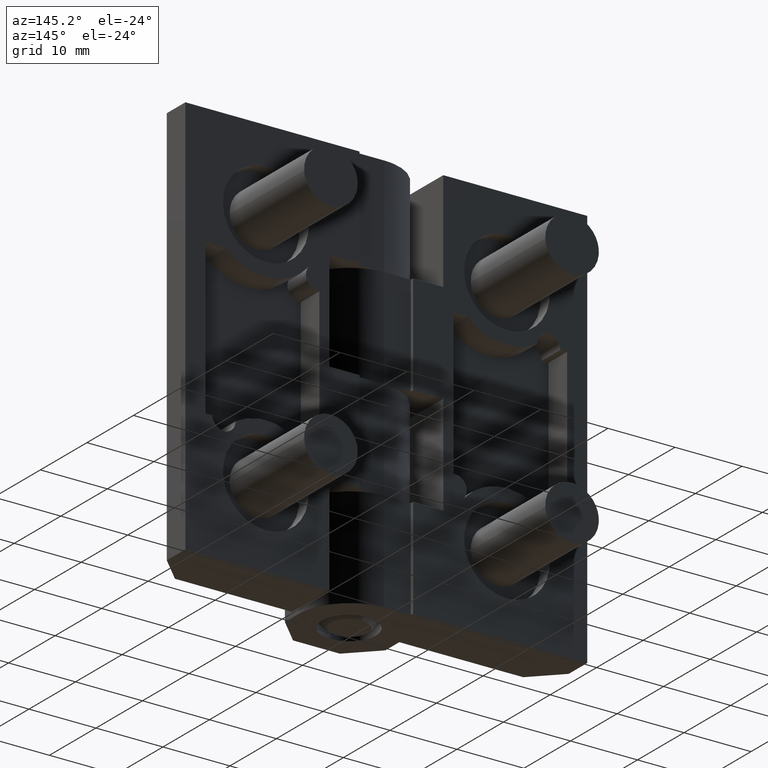
[diagram: clean part render]
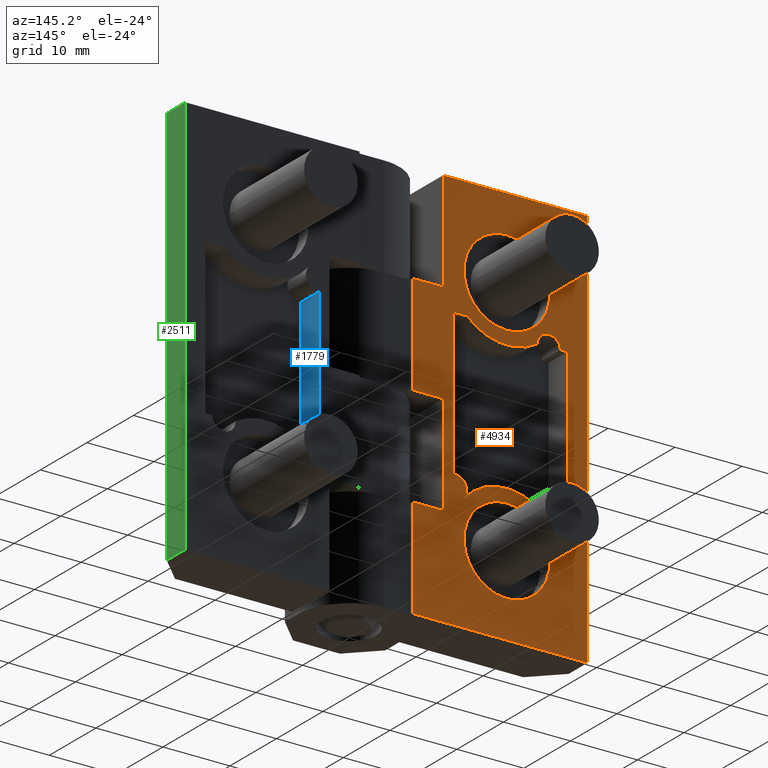
[diagram: same view with three faces highlighted in distinct colors, each labeled with its STEP entity id]
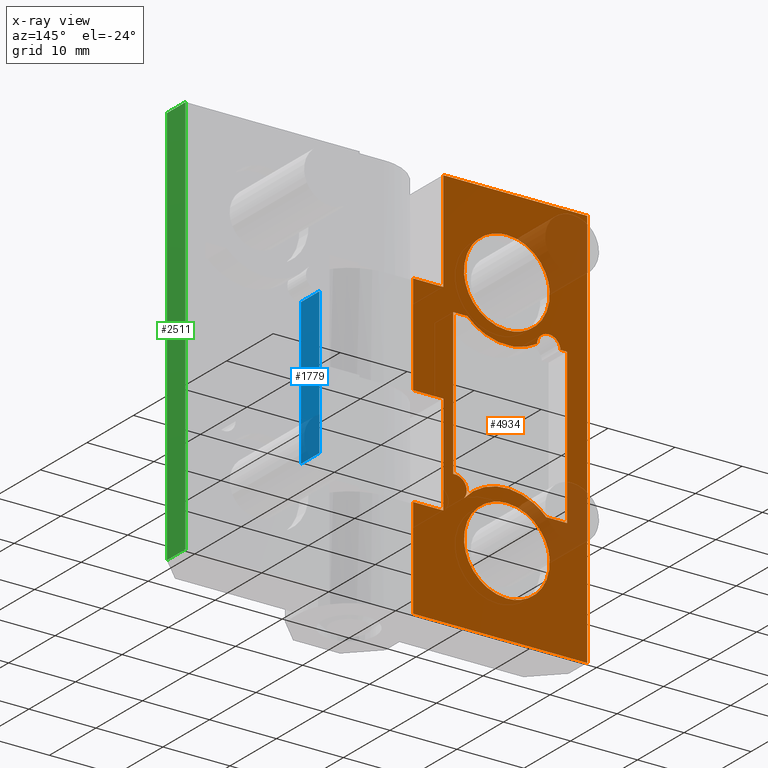
[diagram: x-ray of the same camera — body ghosted, the three highlighted faces saturated]
A machine part, auxiliary view with three faces highlighted in distinct colors.
The next image is the same camera in x-ray (body ghosted, the three faces saturated) — at least one of them is partly hidden behind the body in this view.
Their STEP definitions:

[orange] entity #4934 — the highlighted face is a freeform B-spline surface patch.
#2950=CARTESIAN_POINT('',(-24.380270935887019,8.0,48.502138212674900));
#2951=VERTEX_POINT('',#2950);
#2957=CARTESIAN_POINT('',(-18.0,8.0,54.399999999953202));
#2958=VERTEX_POINT('',#2957);
#2959=CARTESIAN_POINT('',(-18.0,8.0,54.399999999953202));
#2960=CARTESIAN_POINT('',(-23.916099146494403,8.0,54.399999999953202));
#2961=CARTESIAN_POINT('',(-24.380270935887019,8.0,48.502138212674900));
#2969=(BOUNDED_CURVE()B_SPLINE_CURVE(2,(#2959,#2960,#2961),.UNSPECIFIED.,.F.,.U.)B_SPLINE_CURVE_WITH_KNOTS((3,3),(0.0,0.236331300629355),.UNSPECIFIED.)CURVE()GEOMETRIC_REPRESENTATION_ITEM()RATIONAL_B_SPLINE_CURVE((1.0,0.723120658609194,0.969723356164695))REPRESENTATION_ITEM(''));
#2970=EDGE_CURVE('',#2958,#2951,#2969,.T.);
#2972=CARTESIAN_POINT('',(-11.619729064112979,8.0,47.497861787231493));
#2973=VERTEX_POINT('',#2972);
#2974=CARTESIAN_POINT('',(-11.619729064112981,8.0,47.497861787231493));
#2975=CARTESIAN_POINT('',(-11.600000000000001,8.0,47.748543315040330));
#2976=CARTESIAN_POINT('',(-11.600000000000000,8.0,47.999999999953197));
#2977=CARTESIAN_POINT('',(-11.600000000000001,8.0,54.399999999953195));
#2978=CARTESIAN_POINT('',(-18.0,8.0,54.399999999953202));
#2986=(BOUNDED_CURVE()B_SPLINE_CURVE(2,(#2974,#2975,#2976,#2977,#2978),.UNSPECIFIED.,.F.,.U.)B_SPLINE_CURVE_WITH_KNOTS((3,2,3),(0.736331300629355,0.750000000000000,1.0),.UNSPECIFIED.)CURVE()GEOMETRIC_REPRESENTATION_ITEM()RATIONAL_B_SPLINE_CURVE((0.969723356164695,0.983986122577353,1.0,0.707106781186548,1.0))REPRESENTATION_ITEM(''));
#2987=EDGE_CURVE('',#2973,#2958,#2986,.T.);
#3063=CARTESIAN_POINT('',(-18.0,8.0,41.599999999953198));
#3064=VERTEX_POINT('',#3063);
#3065=CARTESIAN_POINT('',(-18.0,8.0,41.599999999953198));
#3066=CARTESIAN_POINT('',(-12.083900853505574,8.0,41.599999999953205));
#3067=CARTESIAN_POINT('',(-11.619729064112978,8.0,47.497861787231493));
#3075=(BOUNDED_CURVE()B_SPLINE_CURVE(2,(#3065,#3066,#3067),.UNSPECIFIED.,.F.,.U.)B_SPLINE_CURVE_WITH_KNOTS((3,3),(0.500000000000000,0.736331300629355),.UNSPECIFIED.)CURVE()GEOMETRIC_REPRESENTATION_ITEM()RATIONAL_B_SPLINE_CURVE((1.0,0.723120658609194,0.969723356164696))REPRESENTATION_ITEM(''));
#3076=EDGE_CURVE('',#3064,#2973,#3075,.T.);
#3078=CARTESIAN_POINT('',(-24.380270935887019,8.0,48.502138212674893));
#3079=CARTESIAN_POINT('',(-24.399999999999999,8.0,48.251456684866085));
#3080=CARTESIAN_POINT('',(-24.399999999999999,8.0,47.999999999953197));
#3081=CARTESIAN_POINT('',(-24.400000000000002,8.0,41.599999999953205));
#3082=CARTESIAN_POINT('',(-18.0,8.0,41.599999999953198));
#3090=(BOUNDED_CURVE()B_SPLINE_CURVE(2,(#3078,#3079,#3080,#3081,#3082),.UNSPECIFIED.,.F.,.U.)B_SPLINE_CURVE_WITH_KNOTS((3,2,3),(0.236331300629355,0.250000000000000,0.500000000000000),.UNSPECIFIED.)CURVE()GEOMETRIC_REPRESENTATION_ITEM()RATIONAL_B_SPLINE_CURVE((0.969723356164695,0.983986122577353,1.0,0.707106781186548,1.0))REPRESENTATION_ITEM(''));
#3091=EDGE_CURVE('',#2951,#3064,#3090,.T.);
#3132=CARTESIAN_POINT('',(-24.380270935887019,8.0,12.502138212674900));
#3133=VERTEX_POINT('',#3132);
#3139=CARTESIAN_POINT('',(-18.0,8.0,18.399999999953199));
#3140=VERTEX_POINT('',#3139);
#3141=CARTESIAN_POINT('',(-18.0,8.0,18.399999999953199));
#3142=CARTESIAN_POINT('',(-23.916099146494403,8.0,18.399999999953199));
#3143=CARTESIAN_POINT('',(-24.380270935887019,8.0,12.502138212674904));
#3151=(BOUNDED_CURVE()B_SPLINE_CURVE(2,(#3141,#3142,#3143),.UNSPECIFIED.,.F.,.U.)B_SPLINE_CURVE_WITH_KNOTS((3,3),(0.0,0.236331300629355),.UNSPECIFIED.)CURVE()GEOMETRIC_REPRESENTATION_ITEM()RATIONAL_B_SPLINE_CURVE((1.0,0.723120658609194,0.969723356164695))REPRESENTATION_ITEM(''));
#3152=EDGE_CURVE('',#3140,#3133,#3151,.T.);
#3154=CARTESIAN_POINT('',(-11.619729064112979,8.0,11.497861787231489));
#3155=VERTEX_POINT('',#3154);
#3156=CARTESIAN_POINT('',(-11.619729064112981,8.0,11.497861787231491));
#3157=CARTESIAN_POINT('',(-11.600000000000001,8.0,11.748543315040321));
#3158=CARTESIAN_POINT('',(-11.600000000000000,8.0,11.999999999953200));
#3159=CARTESIAN_POINT('',(-11.600000000000001,8.0,18.399999999953195));
#3160=CARTESIAN_POINT('',(-18.0,8.0,18.399999999953199));
#3168=(BOUNDED_CURVE()B_SPLINE_CURVE(2,(#3156,#3157,#3158,#3159,#3160),.UNSPECIFIED.,.F.,.U.)B_SPLINE_CURVE_WITH_KNOTS((3,2,3),(0.736331300629355,0.750000000000000,1.0),.UNSPECIFIED.)CURVE()GEOMETRIC_REPRESENTATION_ITEM()RATIONAL_B_SPLINE_CURVE((0.969723356164695,0.983986122577353,1.0,0.707106781186548,1.0))REPRESENTATION_ITEM(''));
#3169=EDGE_CURVE('',#3155,#3140,#3168,.T.);
#3245=CARTESIAN_POINT('',(-18.0,8.0,5.599999999953199));
#3246=VERTEX_POINT('',#3245);
#3247=CARTESIAN_POINT('',(-18.0,8.0,5.599999999953199));
#3248=CARTESIAN_POINT('',(-12.083900853505574,8.0,5.599999999953200));
#3249=CARTESIAN_POINT('',(-11.619729064112978,8.0,11.497861787231489));
#3257=(BOUNDED_CURVE()B_SPLINE_CURVE(2,(#3247,#3248,#3249),.UNSPECIFIED.,.F.,.U.)B_SPLINE_CURVE_WITH_KNOTS((3,3),(0.500000000000000,0.736331300629355),.UNSPECIFIED.)CURVE()GEOMETRIC_REPRESENTATION_ITEM()RATIONAL_B_SPLINE_CURVE((1.0,0.723120658609194,0.969723356164696))REPRESENTATION_ITEM(''));
#3258=EDGE_CURVE('',#3246,#3155,#3257,.T.);
#3260=CARTESIAN_POINT('',(-24.380270935887019,8.0,12.502138212674904));
#3261=CARTESIAN_POINT('',(-24.399999999999999,8.0,12.251456684866080));
#3262=CARTESIAN_POINT('',(-24.399999999999999,8.0,11.999999999953200));
#3263=CARTESIAN_POINT('',(-24.400000000000002,8.0,5.599999999953201));
#3264=CARTESIAN_POINT('',(-18.0,8.0,5.599999999953199));
#3272=(BOUNDED_CURVE()B_SPLINE_CURVE(2,(#3260,#3261,#3262,#3263,#3264),.UNSPECIFIED.,.F.,.U.)B_SPLINE_CURVE_WITH_KNOTS((3,2,3),(0.236331300629355,0.250000000000000,0.500000000000000),.UNSPECIFIED.)CURVE()GEOMETRIC_REPRESENTATION_ITEM()RATIONAL_B_SPLINE_CURVE((0.969723356164695,0.983986122577353,1.0,0.707106781186548,1.0))REPRESENTATION_ITEM(''));
#3273=EDGE_CURVE('',#3133,#3246,#3272,.T.);
#3797=CARTESIAN_POINT('',(-9.999999999999890,8.0,20.286438650791698));
#3798=VERTEX_POINT('',#3797);
#3799=CARTESIAN_POINT('',(-10.0,8.0,42.0));
#3800=VERTEX_POINT('',#3799);
#3801=CARTESIAN_POINT('',(-9.999999999999890,8.0,20.286438650791698));
#3802=CARTESIAN_POINT('',(-10.0,8.0,42.0));
#3803=QUASI_UNIFORM_CURVE('',1,(#3801,#3802),.UNSPECIFIED.,.F.,.U.);
#3804=EDGE_CURVE('',#3798,#3800,#3803,.T.);
#3825=CARTESIAN_POINT('',(-12.121224617272800,8.0,42.0));
#3826=VERTEX_POINT('',#3825);
#3827=CARTESIAN_POINT('',(-10.0,8.0,42.0));
#3828=CARTESIAN_POINT('',(-12.121224617272800,8.0,42.0));
#3829=QUASI_UNIFORM_CURVE('',1,(#3827,#3828),.UNSPECIFIED.,.F.,.U.);
#3830=EDGE_CURVE('',#3800,#3826,#3829,.T.);
#3856=CARTESIAN_POINT('',(-22.500032020331499,8.0,40.907066064268200));
#3857=VERTEX_POINT('',#3856);
#3858=CARTESIAN_POINT('',(-22.500032020331481,8.0,40.907066064268243));
#3859=CARTESIAN_POINT('',(-16.877442339288741,8.000000000000002,37.339877390117103));
#3860=CARTESIAN_POINT('',(-12.121224617272800,8.0,42.0));
#3868=(BOUNDED_CURVE()B_SPLINE_CURVE(2,(#3858,#3859,#3860),.UNSPECIFIED.,.F.,.U.)CURVE()GEOMETRIC_REPRESENTATION_ITEM()QUASI_UNIFORM_CURVE()RATIONAL_B_SPLINE_CURVE((1.0,0.783650455742543,1.0))REPRESENTATION_ITEM(''));
#3869=EDGE_CURVE('',#3857,#3826,#3868,.T.);
#3899=CARTESIAN_POINT('',(-25.996935475914000,8.0,41.0));
#3900=VERTEX_POINT('',#3899);
#3901=CARTESIAN_POINT('',(-22.500032020331510,8.0,40.907066064268200));
#3902=CARTESIAN_POINT('',(-22.510278533623929,8.000000000000002,42.600862686382975));
#3903=CARTESIAN_POINT('',(-24.203508300499919,8.0,42.645862071791463));
#3904=CARTESIAN_POINT('',(-25.896738067375903,8.000000000000002,42.690861457199951));
#3905=CARTESIAN_POINT('',(-25.996935475913951,8.0,41.0));
#3913=(BOUNDED_CURVE()B_SPLINE_CURVE(2,(#3901,#3902,#3903,#3904,#3905),.UNSPECIFIED.,.F.,.U.)B_SPLINE_CURVE_WITH_KNOTS((3,2,3),(0.0,0.500000000000000,1.0),.UNSPECIFIED.)CURVE()GEOMETRIC_REPRESENTATION_ITEM()RATIONAL_B_SPLINE_CURVE((1.0,0.718544845127406,1.0,0.718544845127406,1.0))REPRESENTATION_ITEM(''));
#3914=EDGE_CURVE('',#3857,#3900,#3913,.T.);
#3931=CARTESIAN_POINT('',(-27.0,8.0,41.0));
#3932=VERTEX_POINT('',#3931);
#3933=CARTESIAN_POINT('',(-25.996935475914000,8.0,41.0));
#3934=CARTESIAN_POINT('',(-27.0,8.0,41.0));
#3935=QUASI_UNIFORM_CURVE('',1,(#3933,#3934),.UNSPECIFIED.,.F.,.U.);
#3936=EDGE_CURVE('',#3900,#3932,#3935,.T.);
#3953=CARTESIAN_POINT('',(-27.0,8.0,18.0));
#3954=VERTEX_POINT('',#3953);
#3955=CARTESIAN_POINT('',(-27.0,8.0,41.0));
#3956=CARTESIAN_POINT('',(-27.0,8.0,18.0));
#3957=QUASI_UNIFORM_CURVE('',1,(#3955,#3956),.UNSPECIFIED.,.F.,.U.);
#3958=EDGE_CURVE('',#3932,#3954,#3957,.T.);
#3975=CARTESIAN_POINT('',(-23.878775382631950,8.0,18.0));
#3976=VERTEX_POINT('',#3975);
#3977=CARTESIAN_POINT('',(-27.0,8.0,18.0));
#3978=CARTESIAN_POINT('',(-23.878775382631950,8.0,18.0));
#3979=QUASI_UNIFORM_CURVE('',1,(#3977,#3978),.UNSPECIFIED.,.F.,.U.);
#3980=EDGE_CURVE('',#3954,#3976,#3979,.T.);
#4006=CARTESIAN_POINT('',(-11.586206896551660,8.0,17.424320973693550));
#4007=VERTEX_POINT('',#4006);
#4008=CARTESIAN_POINT('',(-11.586206896551660,8.0,17.424320973693550));
#4009=CARTESIAN_POINT('',(-13.950207683247823,8.0,20.219548618897342));
#4010=CARTESIAN_POINT('',(-17.607046344044011,8.0,20.390803741208909));
#4011=CARTESIAN_POINT('',(-21.263885004840201,8.0,20.562058863520473));
#4012=CARTESIAN_POINT('',(-23.878775382631900,8.0,17.999999999999961));
#4020=(BOUNDED_CURVE()B_SPLINE_CURVE(2,(#4008,#4009,#4010,#4011,#4012),.UNSPECIFIED.,.F.,.U.)B_SPLINE_CURVE_WITH_KNOTS((3,2,3),(0.0,0.500000000000000,1.0),.UNSPECIFIED.)CURVE()GEOMETRIC_REPRESENTATION_ITEM()RATIONAL_B_SPLINE_CURVE((1.0,0.916723622877948,1.0,0.916723622877948,1.0))REPRESENTATION_ITEM(''));
#4021=EDGE_CURVE('',#4007,#3976,#4020,.T.);
#4051=CARTESIAN_POINT('',(-9.999999999999895,8.0,20.286438650791659));
#4052=CARTESIAN_POINT('',(-11.195255925345359,8.0,20.458958983353913));
#4053=CARTESIAN_POINT('',(-11.780650435245899,8.0,19.402685694853659));
#4054=CARTESIAN_POINT('',(-12.366044945146447,8.0,18.346412406353405));
#4055=CARTESIAN_POINT('',(-11.586206896551690,8.0,17.424320973693529));
#4063=(BOUNDED_CURVE()B_SPLINE_CURVE(2,(#4051,#4052,#4053,#4054,#4055),.UNSPECIFIED.,.F.,.U.)B_SPLINE_CURVE_WITH_KNOTS((3,2,3),(0.0,0.500000000000000,1.0),.UNSPECIFIED.)CURVE()GEOMETRIC_REPRESENTATION_ITEM()RATIONAL_B_SPLINE_CURVE((1.0,0.823048823920837,1.0,0.823048823920837,1.0))REPRESENTATION_ITEM(''));
#4064=EDGE_CURVE('',#3798,#4007,#4063,.T.);
#4086=CARTESIAN_POINT('',(-8.500000000062100,8.0,15.000000000033401));
#4087=VERTEX_POINT('',#4086);
#4093=CARTESIAN_POINT('',(-8.500000000000000,8.0,30.0));
#4094=VERTEX_POINT('',#4093);
#4095=CARTESIAN_POINT('',(-8.500000000062100,8.0,15.000000000033401));
#4096=CARTESIAN_POINT('',(-8.500000000000000,8.0,30.0));
#4097=QUASI_UNIFORM_CURVE('',1,(#4095,#4096),.UNSPECIFIED.,.F.,.U.);
#4098=EDGE_CURVE('',#4087,#4094,#4097,.T.);
#4113=CARTESIAN_POINT('',(-4.0,8.0,30.0));
#4114=VERTEX_POINT('',#4113);
#4185=CARTESIAN_POINT('',(-8.500000000000000,8.0,30.0));
#4186=CARTESIAN_POINT('',(-4.0,8.0,30.0));
#4187=QUASI_UNIFORM_CURVE('',1,(#4185,#4186),.UNSPECIFIED.,.F.,.U.);
#4188=EDGE_CURVE('',#4094,#4114,#4187,.T.);
#4206=CARTESIAN_POINT('',(-4.0,8.0,15.000000000029500));
#4207=VERTEX_POINT('',#4206);
#4213=CARTESIAN_POINT('',(-4.0,8.0,15.000000000029500));
#4214=CARTESIAN_POINT('',(-8.500000000062100,8.0,15.000000000033401));
#4215=QUASI_UNIFORM_CURVE('',1,(#4213,#4214),.UNSPECIFIED.,.F.,.U.);
#4216=EDGE_CURVE('',#4207,#4087,#4215,.T.);
#4297=CARTESIAN_POINT('',(-4.0,8.0,44.999999999926743));
#4298=VERTEX_POINT('',#4297);
#4304=CARTESIAN_POINT('',(-8.499999999945690,8.0,44.999999999917101));
#4305=VERTEX_POINT('',#4304);
#4306=CARTESIAN_POINT('',(-4.0,8.0,44.999999999926743));
#4307=CARTESIAN_POINT('',(-8.499999999945690,8.0,44.999999999917101));
#4308=QUASI_UNIFORM_CURVE('',1,(#4306,#4307),.UNSPECIFIED.,.F.,.U.);
#4309=EDGE_CURVE('',#4298,#4305,#4308,.T.);
#4402=CARTESIAN_POINT('',(-8.500000000062100,8.0,60.0));
#4403=VERTEX_POINT('',#4402);
#4404=CARTESIAN_POINT('',(-8.499999999945690,8.0,44.999999999917101));
#4405=CARTESIAN_POINT('',(-8.500000000062100,8.0,60.0));
#4406=QUASI_UNIFORM_CURVE('',1,(#4404,#4405),.UNSPECIFIED.,.F.,.U.);
#4407=EDGE_CURVE('',#4305,#4403,#4406,.T.);
#4438=CARTESIAN_POINT('',(-30.0,8.0,0.0));
#4439=VERTEX_POINT('',#4438);
#4445=CARTESIAN_POINT('',(-4.0,8.0,0.0));
#4446=VERTEX_POINT('',#4445);
#4447=CARTESIAN_POINT('',(-30.0,8.0,0.0));
#4448=CARTESIAN_POINT('',(-4.0,8.0,0.0));
#4449=QUASI_UNIFORM_CURVE('',1,(#4447,#4448),.UNSPECIFIED.,.F.,.U.);
#4450=EDGE_CURVE('',#4439,#4446,#4449,.T.);
#4536=CARTESIAN_POINT('',(-30.0,8.0,60.0));
#4537=VERTEX_POINT('',#4536);
#4538=CARTESIAN_POINT('',(-30.0,8.0,60.0));
#4539=CARTESIAN_POINT('',(-8.500000000062100,8.0,60.0));
#4540=QUASI_UNIFORM_CURVE('',1,(#4538,#4539),.UNSPECIFIED.,.F.,.U.);
#4541=EDGE_CURVE('',#4537,#4403,#4540,.T.);
#4689=CARTESIAN_POINT('',(-4.0,8.0,44.999999999926743));
#4690=CARTESIAN_POINT('',(-4.0,8.0,30.0));
#4691=QUASI_UNIFORM_CURVE('',1,(#4689,#4690),.UNSPECIFIED.,.F.,.U.);
#4692=EDGE_CURVE('',#4298,#4114,#4691,.T.);
#4711=CARTESIAN_POINT('',(-30.0,8.0,60.0));
#4712=CARTESIAN_POINT('',(-30.0,8.0,0.0));
#4713=QUASI_UNIFORM_CURVE('',1,(#4711,#4712),.UNSPECIFIED.,.F.,.U.);
#4714=EDGE_CURVE('',#4537,#4439,#4713,.T.);
#4886=CARTESIAN_POINT('',(-4.0,8.0,15.000000000029500));
#4887=CARTESIAN_POINT('',(-4.0,8.0,0.0));
#4888=QUASI_UNIFORM_CURVE('',1,(#4886,#4887),.UNSPECIFIED.,.F.,.U.);
#4889=EDGE_CURVE('',#4207,#4446,#4888,.T.);
#4894=CARTESIAN_POINT('',(-31.298699949606959,8.0,-2.996999883708359));
#4895=CARTESIAN_POINT('',(-31.298699949606959,8.0,62.997001493033771));
#4896=CARTESIAN_POINT('',(-2.701299353018702,8.0,-2.996999883708359));
#4897=CARTESIAN_POINT('',(-2.701299353018702,8.0,62.997001493033771));
#4898=B_SPLINE_SURFACE_WITH_KNOTS('',1,1,((#4894,#4896),(#4895,#4897)),.UNSPECIFIED.,.F.,.F.,.U.,(2,2),(2,2),(0.0,65.994001376742133),(0.0,28.597400596588258),.UNSPECIFIED.);
#4899=ORIENTED_EDGE('',*,*,#4216,.F.);
#4900=ORIENTED_EDGE('',*,*,#4889,.T.);
#4901=ORIENTED_EDGE('',*,*,#4450,.F.);
#4902=ORIENTED_EDGE('',*,*,#4714,.F.);
#4903=ORIENTED_EDGE('',*,*,#4541,.T.);
#4904=ORIENTED_EDGE('',*,*,#4407,.F.);
#4905=ORIENTED_EDGE('',*,*,#4309,.F.);
#4906=ORIENTED_EDGE('',*,*,#4692,.T.);
#4907=ORIENTED_EDGE('',*,*,#4188,.F.);
#4908=ORIENTED_EDGE('',*,*,#4098,.F.);
#4909=EDGE_LOOP('',(#4899,#4900,#4901,#4902,#4903,#4904,#4905,#4906,#4907,#4908));
#4910=FACE_OUTER_BOUND('',#4909,.T.);
#4911=ORIENTED_EDGE('',*,*,#4064,.F.);
#4912=ORIENTED_EDGE('',*,*,#3804,.T.);
#4913=ORIENTED_EDGE('',*,*,#3830,.T.);
#4914=ORIENTED_EDGE('',*,*,#3869,.F.);
#4915=ORIENTED_EDGE('',*,*,#3914,.T.);
#4916=ORIENTED_EDGE('',*,*,#3936,.T.);
#4917=ORIENTED_EDGE('',*,*,#3958,.T.);
#4918=ORIENTED_EDGE('',*,*,#3980,.T.);
#4919=ORIENTED_EDGE('',*,*,#4021,.F.);
#4920=EDGE_LOOP('',(#4911,#4912,#4913,#4914,#4915,#4916,#4917,#4918,#4919));
#4921=FACE_BOUND('',#4920,.T.);
#4922=ORIENTED_EDGE('',*,*,#3258,.T.);
#4923=ORIENTED_EDGE('',*,*,#3169,.T.);
#4924=ORIENTED_EDGE('',*,*,#3152,.T.);
#4925=ORIENTED_EDGE('',*,*,#3273,.T.);
#4926=EDGE_LOOP('',(#4922,#4923,#4924,#4925));
#4927=FACE_BOUND('',#4926,.T.);
#4928=ORIENTED_EDGE('',*,*,#3076,.T.);
#4929=ORIENTED_EDGE('',*,*,#2987,.T.);
#4930=ORIENTED_EDGE('',*,*,#2970,.T.);
#4931=ORIENTED_EDGE('',*,*,#3091,.T.);
#4932=EDGE_LOOP('',(#4928,#4929,#4930,#4931));
#4933=FACE_BOUND('',#4932,.T.);
#4934=ADVANCED_FACE('',(#4910,#4921,#4927,#4933),#4898,.T.);

[blue] entity #1779 — the highlighted face is a freeform B-spline surface patch.
#1675=CARTESIAN_POINT('',(10.0,4.0,18.0));
#1676=VERTEX_POINT('',#1675);
#1682=CARTESIAN_POINT('',(9.999999999999879,4.0,39.713561349208149));
#1683=VERTEX_POINT('',#1682);
#1684=CARTESIAN_POINT('',(9.999999999999879,4.0,39.713561349208149));
#1685=CARTESIAN_POINT('',(10.0,4.0,18.0));
#1686=QUASI_UNIFORM_CURVE('',1,(#1684,#1685),.UNSPECIFIED.,.F.,.U.);
#1687=EDGE_CURVE('',#1683,#1676,#1686,.T.);
#1725=CARTESIAN_POINT('',(9.999999999999879,8.0,39.713561349208149));
#1726=VERTEX_POINT('',#1725);
#1750=CARTESIAN_POINT('',(9.999999999999879,4.0,39.713561349208149));
#1751=CARTESIAN_POINT('',(9.999999999999879,8.0,39.713561349208149));
#1752=QUASI_UNIFORM_CURVE('',1,(#1750,#1751),.UNSPECIFIED.,.F.,.U.);
#1753=EDGE_CURVE('',#1683,#1726,#1752,.T.);
#1758=CARTESIAN_POINT('',(9.999999999999830,3.800200007752776,40.798154511841517));
#1759=CARTESIAN_POINT('',(9.999999999999830,3.800200007752776,16.915407031501001));
#1760=CARTESIAN_POINT('',(9.999999999999830,8.199800099535585,40.798154511841517));
#1761=CARTESIAN_POINT('',(9.999999999999830,8.199800099535585,16.915407031501001));
#1762=B_SPLINE_SURFACE_WITH_KNOTS('',1,1,((#1758,#1760),(#1759,#1761)),.UNSPECIFIED.,.F.,.F.,.U.,(2,2),(2,2),(0.0,23.882747480340530),(0.0,4.399600091782809),.UNSPECIFIED.);
#1763=CARTESIAN_POINT('',(10.0,8.0,18.0));
#1764=VERTEX_POINT('',#1763);
#1765=CARTESIAN_POINT('',(9.999999999999879,8.0,39.713561349208149));
#1766=CARTESIAN_POINT('',(10.0,8.0,18.0));
#1767=QUASI_UNIFORM_CURVE('',1,(#1765,#1766),.UNSPECIFIED.,.F.,.U.);
#1768=EDGE_CURVE('',#1726,#1764,#1767,.T.);
#1769=ORIENTED_EDGE('',*,*,#1768,.F.);
#1770=ORIENTED_EDGE('',*,*,#1753,.F.);
#1771=ORIENTED_EDGE('',*,*,#1687,.T.);
#1772=CARTESIAN_POINT('',(10.0,4.0,18.0));
#1773=CARTESIAN_POINT('',(10.0,8.0,18.0));
#1774=QUASI_UNIFORM_CURVE('',1,(#1772,#1773),.UNSPECIFIED.,.F.,.U.);
#1775=EDGE_CURVE('',#1676,#1764,#1774,.T.);
#1776=ORIENTED_EDGE('',*,*,#1775,.T.);
#1777=EDGE_LOOP('',(#1769,#1770,#1771,#1776));
#1778=FACE_OUTER_BOUND('',#1777,.T.);
#1779=ADVANCED_FACE('',(#1778),#1762,.T.);

[green] entity #2511 — the highlighted face is a freeform B-spline surface patch.
#2363=CARTESIAN_POINT('',(30.0,8.0,60.0));
#2364=VERTEX_POINT('',#2363);
#2441=CARTESIAN_POINT('',(30.0,4.0,60.0));
#2442=VERTEX_POINT('',#2441);
#2448=CARTESIAN_POINT('',(30.0,8.0,60.0));
#2449=CARTESIAN_POINT('',(30.0,4.0,60.0));
#2450=QUASI_UNIFORM_CURVE('',1,(#2448,#2449),.UNSPECIFIED.,.F.,.U.);
#2451=EDGE_CURVE('',#2364,#2442,#2450,.T.);
#2467=CARTESIAN_POINT('',(30.0,4.0,0.0));
#2468=VERTEX_POINT('',#2467);
#2476=CARTESIAN_POINT('',(30.0,4.0,60.0));
#2477=CARTESIAN_POINT('',(30.0,4.0,0.0));
#2478=QUASI_UNIFORM_CURVE('',1,(#2476,#2477),.UNSPECIFIED.,.F.,.U.);
#2479=EDGE_CURVE('',#2442,#2468,#2478,.T.);
#2490=CARTESIAN_POINT('',(30.0,3.800200007752776,62.996999883708362));
#2491=CARTESIAN_POINT('',(30.0,3.800200007752776,-2.997001493033767));
#2492=CARTESIAN_POINT('',(30.0,8.199800099535585,62.996999883708362));
#2493=CARTESIAN_POINT('',(30.0,8.199800099535585,-2.997001493033767));
#2494=B_SPLINE_SURFACE_WITH_KNOTS('',1,1,((#2490,#2492),(#2491,#2493)),.UNSPECIFIED.,.F.,.F.,.U.,(2,2),(2,2),(0.0,65.994001376742119),(0.0,4.399600091782808),.UNSPECIFIED.);
#2495=CARTESIAN_POINT('',(30.0,8.0,0.0));
#2496=VERTEX_POINT('',#2495);
#2497=CARTESIAN_POINT('',(30.0,8.0,0.0));
#2498=CARTESIAN_POINT('',(30.0,4.0,0.0));
#2499=QUASI_UNIFORM_CURVE('',1,(#2497,#2498),.UNSPECIFIED.,.F.,.U.);
#2500=EDGE_CURVE('',#2496,#2468,#2499,.T.);
#2501=ORIENTED_EDGE('',*,*,#2500,.F.);
#2502=CARTESIAN_POINT('',(30.0,8.0,60.0));
#2503=CARTESIAN_POINT('',(30.0,8.0,0.0));
#2504=QUASI_UNIFORM_CURVE('',1,(#2502,#2503),.UNSPECIFIED.,.F.,.U.);
#2505=EDGE_CURVE('',#2364,#2496,#2504,.T.);
#2506=ORIENTED_EDGE('',*,*,#2505,.F.);
#2507=ORIENTED_EDGE('',*,*,#2451,.T.);
#2508=ORIENTED_EDGE('',*,*,#2479,.T.);
#2509=EDGE_LOOP('',(#2501,#2506,#2507,#2508));
#2510=FACE_OUTER_BOUND('',#2509,.T.);
#2511=ADVANCED_FACE('',(#2510),#2494,.T.);